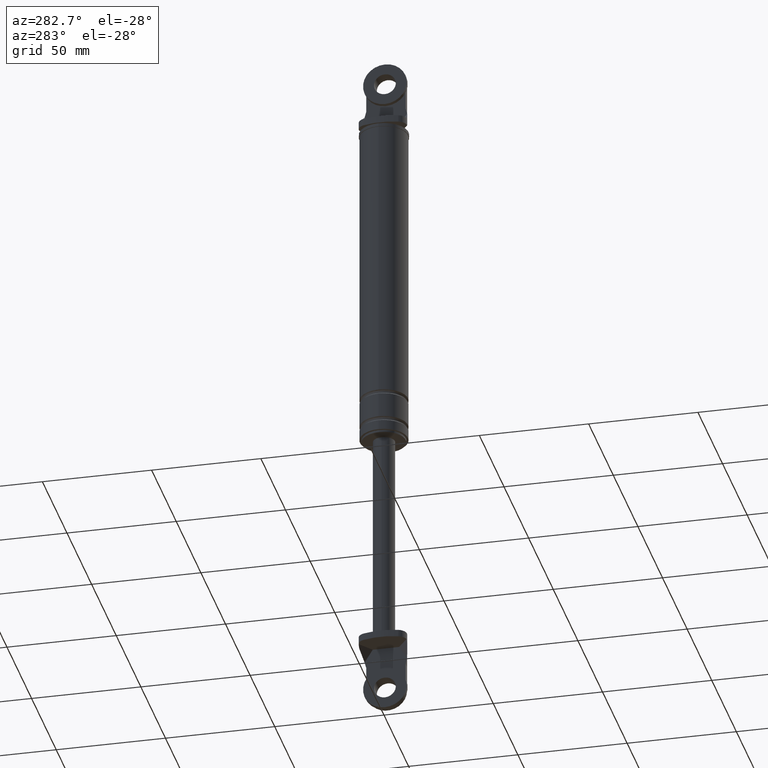
[diagram: clean part render]
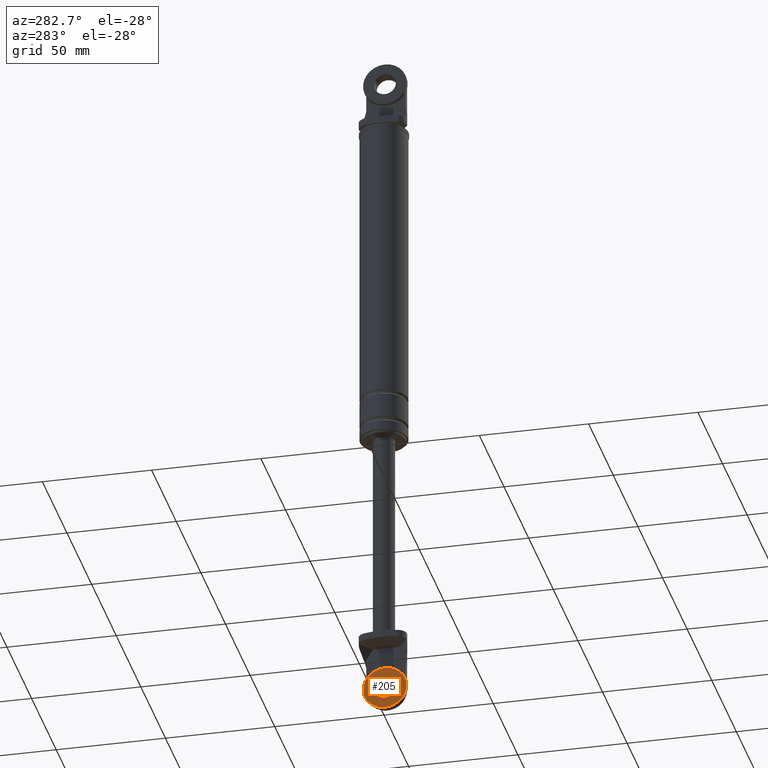
[diagram: same view with one face highlighted and labeled with its STEP entity id]
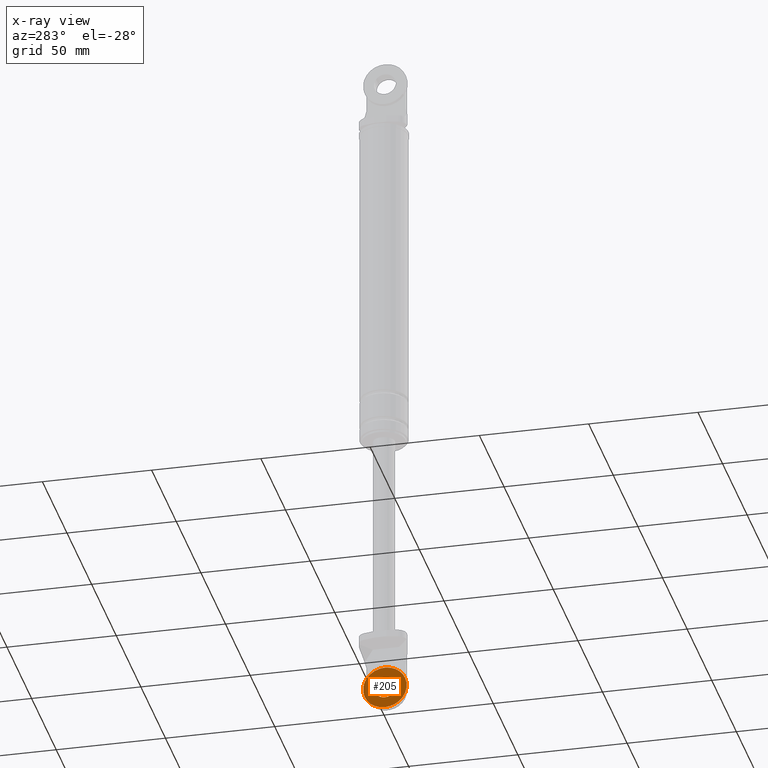
[diagram: x-ray of the same camera — body ghosted, the highlighted face saturated]
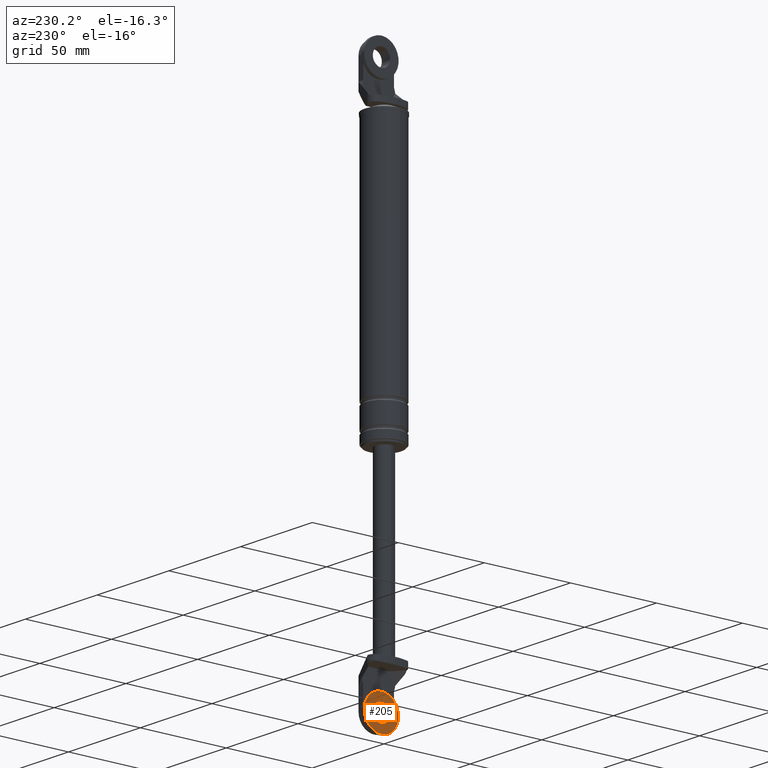
[diagram: same view with one face highlighted and labeled with its STEP entity id]
A machine part, auxiliary view. The second image highlights one B-rep face of the part: STEP entity #205.
The next image is the same camera in x-ray: the body ghosted, the highlighted face saturated — about 0% of this face is hidden behind the body in this view.
A second angle (auxiliary view) of the same face is appended — the face is thin or edge-on in the first view.
In plain terms, the highlighted planar face has unit normal (1, 0, 0).
Its self-contained STEP definition (entity closure, byte-faithful):
#205=ADVANCED_FACE('',(#299,#300),#298,.F.);
#298=PLANE('',#1137);
#299=FACE_OUTER_BOUND('',#1138,.T.);
#300=FACE_BOUND('',#1139,.T.);
#1134=CARTESIAN_POINT('',(-6.90000460000E+001,2.07846096908E+001,2.76000000000E+002));
#1135=DIRECTION('',(1.00000000000E+000,0.00000000000E+000,0.00000000000E+000));
#1136=DIRECTION('',(0.00000000000E+000,-1.00000000000E+000,0.00000000000E+000));
#1137=AXIS2_PLACEMENT_3D('',#1134,#1135,#1136);
#1138=EDGE_LOOP('',(#1784,#1785));
#1139=EDGE_LOOP('',(#1786,#1787));
#1784=ORIENTED_EDGE('',*,*,#2184,.T.);
#1785=ORIENTED_EDGE('',*,*,#2185,.T.);
#1786=ORIENTED_EDGE('',*,*,#2186,.F.);
#1787=ORIENTED_EDGE('',*,*,#2187,.F.);
#2184=EDGE_CURVE('',#2408,#2409,#2410,.T.);
#2185=EDGE_CURVE('',#2409,#2408,#2416,.T.);
#2186=EDGE_CURVE('',#2422,#2423,#2424,.T.);
#2187=EDGE_CURVE('',#2423,#2422,#2430,.T.);
#2408=VERTEX_POINT('',#3728);
#2409=VERTEX_POINT('',#3729);
#2410=CIRCLE('',#3733,1.00000000000E+001);
#2416=CIRCLE('',#3737,1.00000000000E+001);
#2422=VERTEX_POINT('',#3738);
#2423=VERTEX_POINT('',#3739);
#2424=CIRCLE('',#3743,5.00000000000E+000);
#2430=CIRCLE('',#3747,5.00000000000E+000);
#3728=CARTESIAN_POINT('',(-6.90000460000E+001,5.68434188608E-014,2.43000000000E+002));
#3729=CARTESIAN_POINT('',(-6.90000460000E+001,5.80276567537E-014,2.63000000000E+002));
#3730=CARTESIAN_POINT('',(-6.90000460000E+001,5.68434188608E-014,2.53000000000E+002));
#3731=DIRECTION('',(-1.00000000000E+000,0.00000000000E+000,-0.00000000000E+000));
#3732=DIRECTION('',(0.00000000000E+000,-1.22460635382E-016,-1.00000000000E+000));
#3733=AXIS2_PLACEMENT_3D('',#3730,#3731,#3732);
#3734=CARTESIAN_POINT('',(-6.90000460000E+001,5.68434188608E-014,2.53000000000E+002));
#3735=DIRECTION('',(-1.00000000000E+000,0.00000000000E+000,-0.00000000000E+000));
#3736=DIRECTION('',(0.00000000000E+000,-1.22460635382E-016,-1.00000000000E+000));
#3737=AXIS2_PLACEMENT_3D('',#3734,#3735,#3736);
#3738=CARTESIAN_POINT('',(-6.90000460000E+001,5.74355378073E-014,2.58000000000E+002));
#3739=CARTESIAN_POINT('',(-6.90000460000E+001,5.68434188608E-014,2.48000000000E+002));
#3740=CARTESIAN_POINT('',(-6.90000460000E+001,5.68434188608E-014,2.53000000000E+002));
#3741=DIRECTION('',(-1.00000000000E+000,0.00000000000E+000,-0.00000000000E+000));
#3742=DIRECTION('',(0.00000000000E+000,-1.22460635382E-016,-1.00000000000E+000));
#3743=AXIS2_PLACEMENT_3D('',#3740,#3741,#3742);
#3744=CARTESIAN_POINT('',(-6.90000460000E+001,5.68434188608E-014,2.53000000000E+002));
#3745=DIRECTION('',(-1.00000000000E+000,0.00000000000E+000,-0.00000000000E+000));
#3746=DIRECTION('',(0.00000000000E+000,-1.22460635382E-016,-1.00000000000E+000));
#3747=AXIS2_PLACEMENT_3D('',#3744,#3745,#3746);